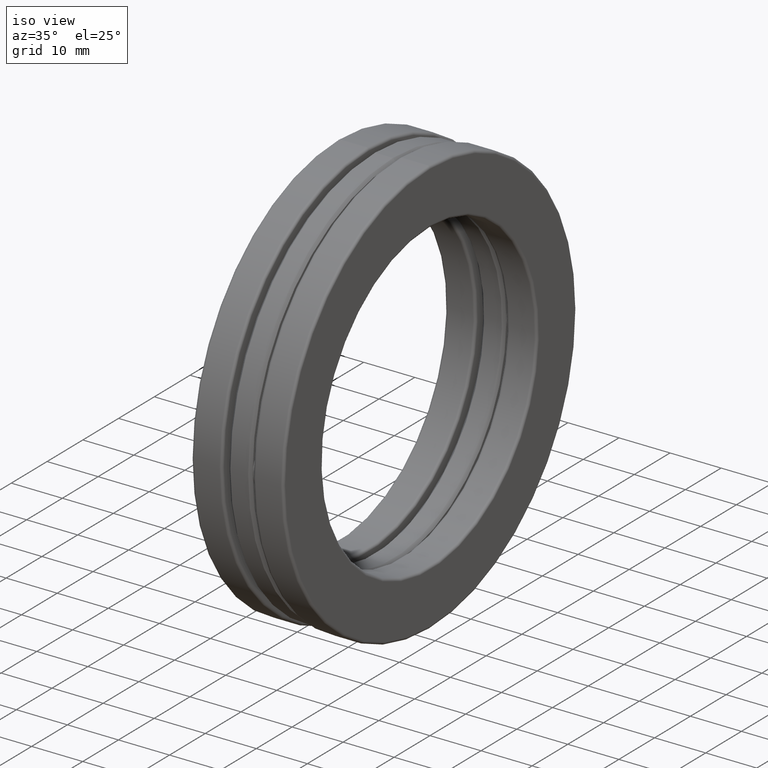
[diagram: clean part render]
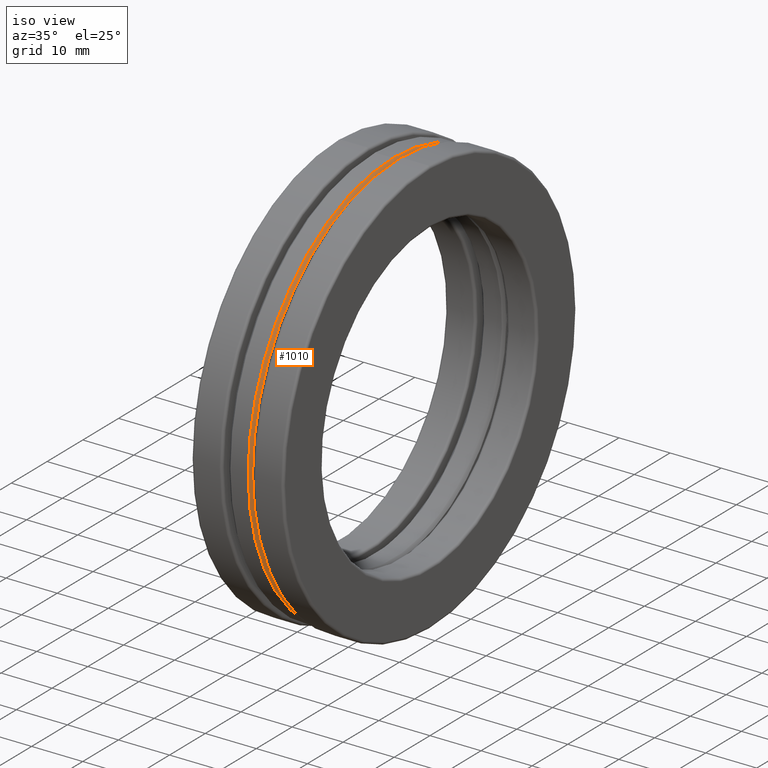
[diagram: same view with one face highlighted and labeled with its STEP entity id]
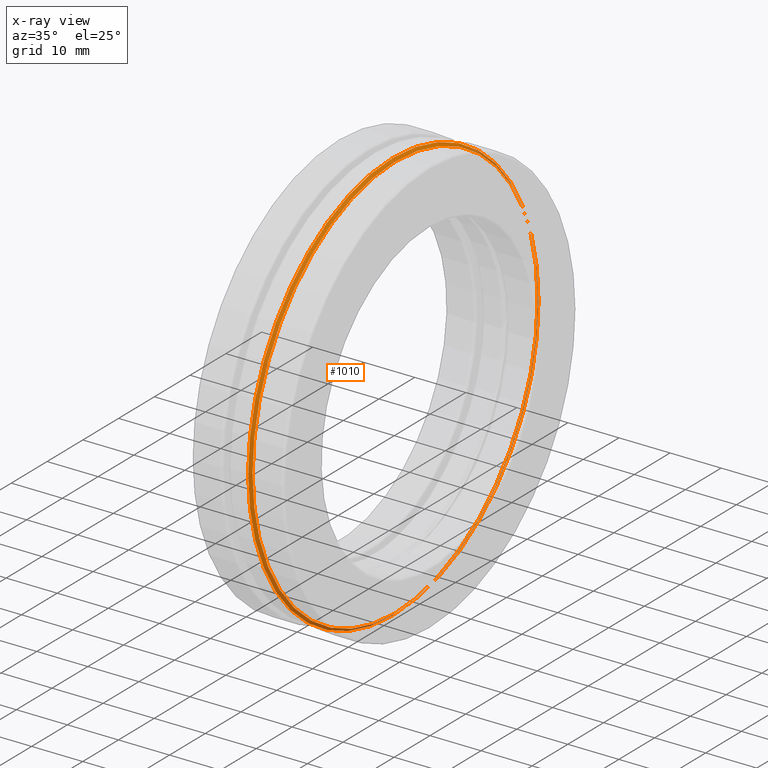
[diagram: x-ray of the same camera — body ghosted, the highlighted face saturated]
A machine part, iso view. The second image highlights one B-rep face of the part: STEP entity #1010.
The next image is the same camera in x-ray: the body ghosted, the highlighted face saturated — about 16% of this face is hidden behind the body in this view.
In plain terms, the highlighted conical surface has half-angle 45 deg.
Its self-contained STEP definition (entity closure, byte-faithful):
#15 = AXIS2_PLACEMENT_3D ( 'NONE', #106, #659, #197 ) ;
#33 = DIRECTION ( 'NONE',  ( 0.0000000000000000000, 0.0000000000000000000, 1.000000000000000000 ) ) ;
#53 = FACE_BOUND ( 'NONE', #626, .T. ) ;
#84 = AXIS2_PLACEMENT_3D ( 'NONE', #93, #952, #948 ) ;
#93 = CARTESIAN_POINT ( 'NONE',  ( 0.08862499999999999500, 0.0000000000000000000, 0.0000000000000000000 ) ) ;
#96 = DIRECTION ( 'NONE',  ( -1.000000000000000000, -0.0000000000000000000, -0.0000000000000000000 ) ) ;
#106 = CARTESIAN_POINT ( 'NONE',  ( 0.08862499999999999500, 0.0000000000000000000, 0.0000000000000000000 ) ) ;
#111 = DIRECTION ( 'NONE',  ( 0.0000000000000000000, 0.0000000000000000000, 1.000000000000000000 ) ) ;
#168 = ORIENTED_EDGE ( 'NONE', *, *, #955, .F. ) ;
#196 = CARTESIAN_POINT ( 'NONE',  ( 0.08862499999999999500, 0.0000000000000000000, 0.0000000000000000000 ) ) ;
#197 = DIRECTION ( 'NONE',  ( 0.0000000000000000000, 0.0000000000000000000, 1.000000000000000000 ) ) ;
#207 = DIRECTION ( 'NONE',  ( 0.0000000000000000000, 0.0000000000000000000, 1.000000000000000000 ) ) ;
#246 = ORIENTED_EDGE ( 'NONE', *, *, #868, .T. ) ;
#255 = CARTESIAN_POINT ( 'NONE',  ( 0.06862499999999997800, 0.0000000000000000000, 0.0000000000000000000 ) ) ;
#262 = AXIS2_PLACEMENT_3D ( 'NONE', #196, #561, #964 ) ;
#263 = CARTESIAN_POINT ( 'NONE',  ( 0.08862499999999999500, 0.0000000000000000000, 0.0000000000000000000 ) ) ;
#270 = CARTESIAN_POINT ( 'NONE',  ( 0.06862499999999997800, 0.0000000000000000000, 1.593999999999999600 ) ) ;
#324 = CARTESIAN_POINT ( 'NONE',  ( 0.08862499999999999500, -1.573999999999999600, 0.0000000000000000000 ) ) ;
#365 = EDGE_CURVE ( 'NONE', #769, #882, #858, .T. ) ;
#424 = CONICAL_SURFACE ( 'NONE', #548, 1.593999999999999600, 0.7853981633974492800 ) ;
#425 = CIRCLE ( 'NONE', #436, 1.573999999999999600 ) ;
#426 = ORIENTED_EDGE ( 'NONE', *, *, #761, .T. ) ;
#436 = AXIS2_PLACEMENT_3D ( 'NONE', #263, #96, #111 ) ;
#447 = CIRCLE ( 'NONE', #496, 1.593999999999999600 ) ;
#496 = AXIS2_PLACEMENT_3D ( 'NONE', #255, #797, #33 ) ;
#522 = CIRCLE ( 'NONE', #84, 1.573999999999999600 ) ;
#548 = AXIS2_PLACEMENT_3D ( 'NONE', #973, #883, #207 ) ;
#561 = DIRECTION ( 'NONE',  ( -1.000000000000000000, -0.0000000000000000000, -0.0000000000000000000 ) ) ;
#626 = EDGE_LOOP ( 'NONE', ( #426, #246, #919, #1014 ) ) ;
#639 = CARTESIAN_POINT ( 'NONE',  ( 0.08862500000000003700, 1.574000000000000300, 0.0000000000000000000 ) ) ;
#659 = DIRECTION ( 'NONE',  ( -1.000000000000000000, -0.0000000000000000000, -0.0000000000000000000 ) ) ;
#660 = CIRCLE ( 'NONE', #262, 1.573999999999999600 ) ;
#669 = VERTEX_POINT ( 'NONE', #324 ) ;
#691 = VERTEX_POINT ( 'NONE', #956 ) ;
#751 = EDGE_LOOP ( 'NONE', ( #168 ) ) ;
#761 = EDGE_CURVE ( 'NONE', #882, #691, #522, .T. ) ;
#769 = VERTEX_POINT ( 'NONE', #864 ) ;
#797 = DIRECTION ( 'NONE',  ( -1.000000000000000000, -0.0000000000000000000, -0.0000000000000000000 ) ) ;
#823 = EDGE_CURVE ( 'NONE', #669, #769, #660, .T. ) ;
#858 = CIRCLE ( 'NONE', #15, 1.573999999999999600 ) ;
#861 = FACE_OUTER_BOUND ( 'NONE', #751, .T. ) ;
#864 = CARTESIAN_POINT ( 'NONE',  ( 0.08862499999999999500, 1.648677488201727300E-014, 1.573999999999999600 ) ) ;
#868 = EDGE_CURVE ( 'NONE', #691, #669, #425, .T. ) ;
#882 = VERTEX_POINT ( 'NONE', #639 ) ;
#883 = DIRECTION ( 'NONE',  ( -1.000000000000000000, -0.0000000000000000000, -0.0000000000000000000 ) ) ;
#913 = VERTEX_POINT ( 'NONE', #270 ) ;
#919 = ORIENTED_EDGE ( 'NONE', *, *, #823, .T. ) ;
#948 = DIRECTION ( 'NONE',  ( 0.0000000000000000000, 0.0000000000000000000, 1.000000000000000000 ) ) ;
#952 = DIRECTION ( 'NONE',  ( -1.000000000000000000, -0.0000000000000000000, -0.0000000000000000000 ) ) ;
#955 = EDGE_CURVE ( 'NONE', #913, #913, #447, .T. ) ;
#956 = CARTESIAN_POINT ( 'NONE',  ( 0.08862500000000003700, -5.495176266943016600E-015, -1.574000000000000300 ) ) ;
#964 = DIRECTION ( 'NONE',  ( 0.0000000000000000000, 0.0000000000000000000, 1.000000000000000000 ) ) ;
#973 = CARTESIAN_POINT ( 'NONE',  ( 0.06862499999999997800, 0.0000000000000000000, 0.0000000000000000000 ) ) ;
#1010 = ADVANCED_FACE ( 'NONE', ( #53, #861 ), #424, .T. ) ;
#1014 = ORIENTED_EDGE ( 'NONE', *, *, #365, .T. ) ;